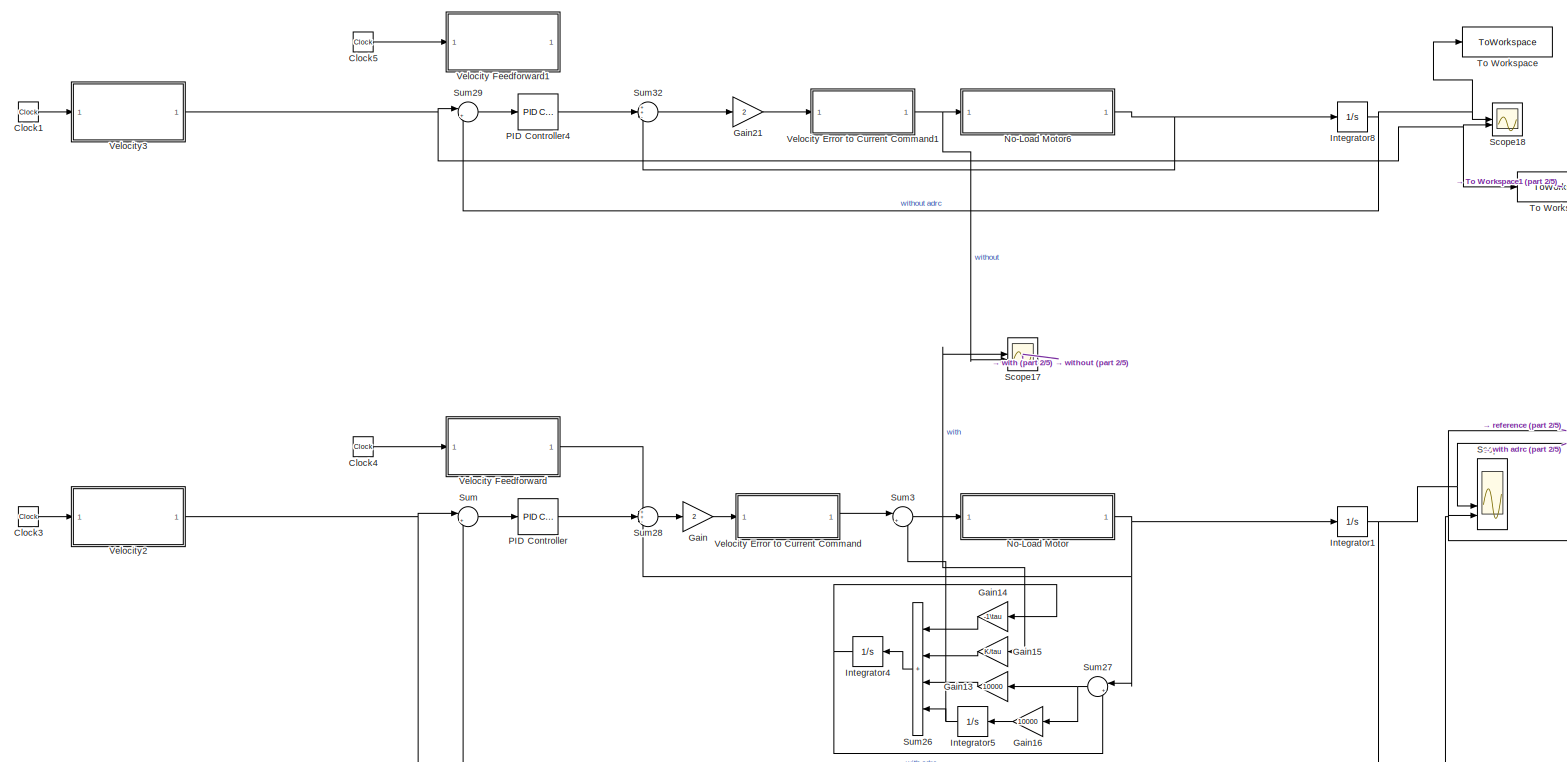
[diagram: root canvas - part 1/5, top left region]
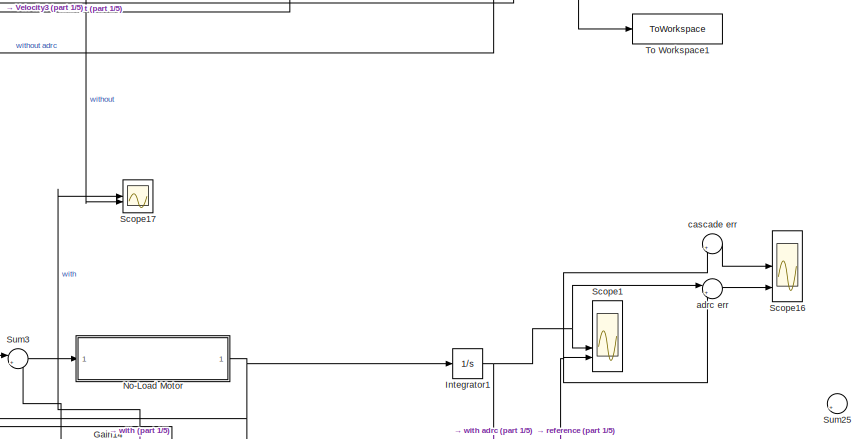
[diagram: root canvas - part 2/5, top center region]
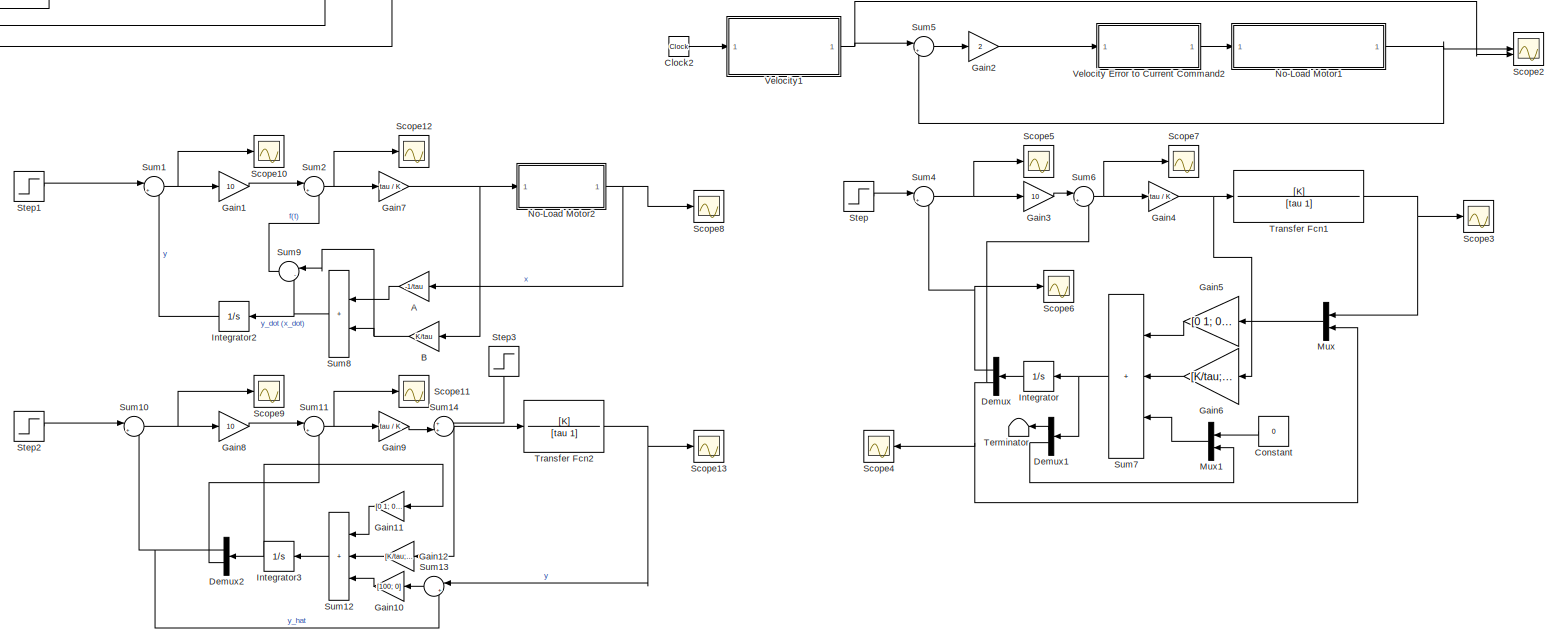
[diagram: root canvas - part 3/5, middle right region]
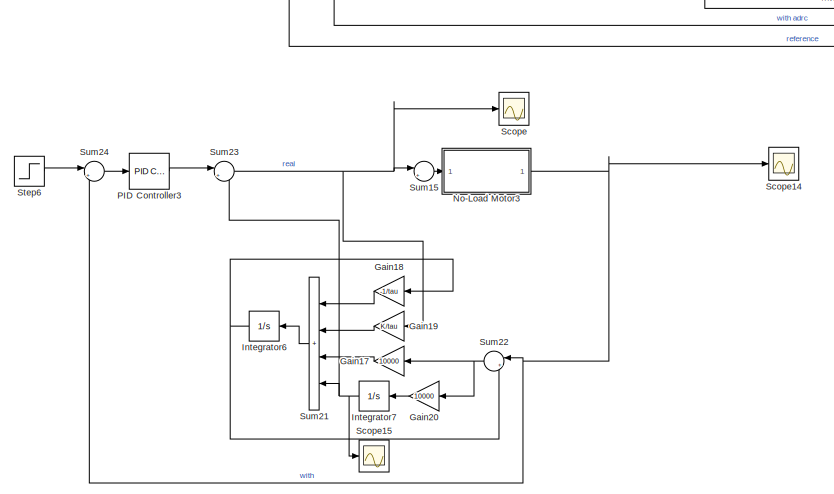
[diagram: root canvas - part 4/5, middle left region]
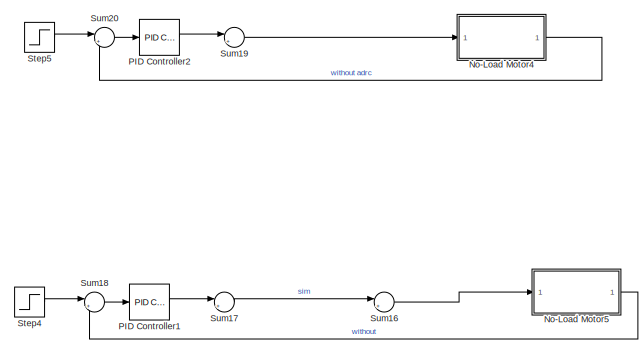
[diagram: root canvas - part 5/5, bottom right region]
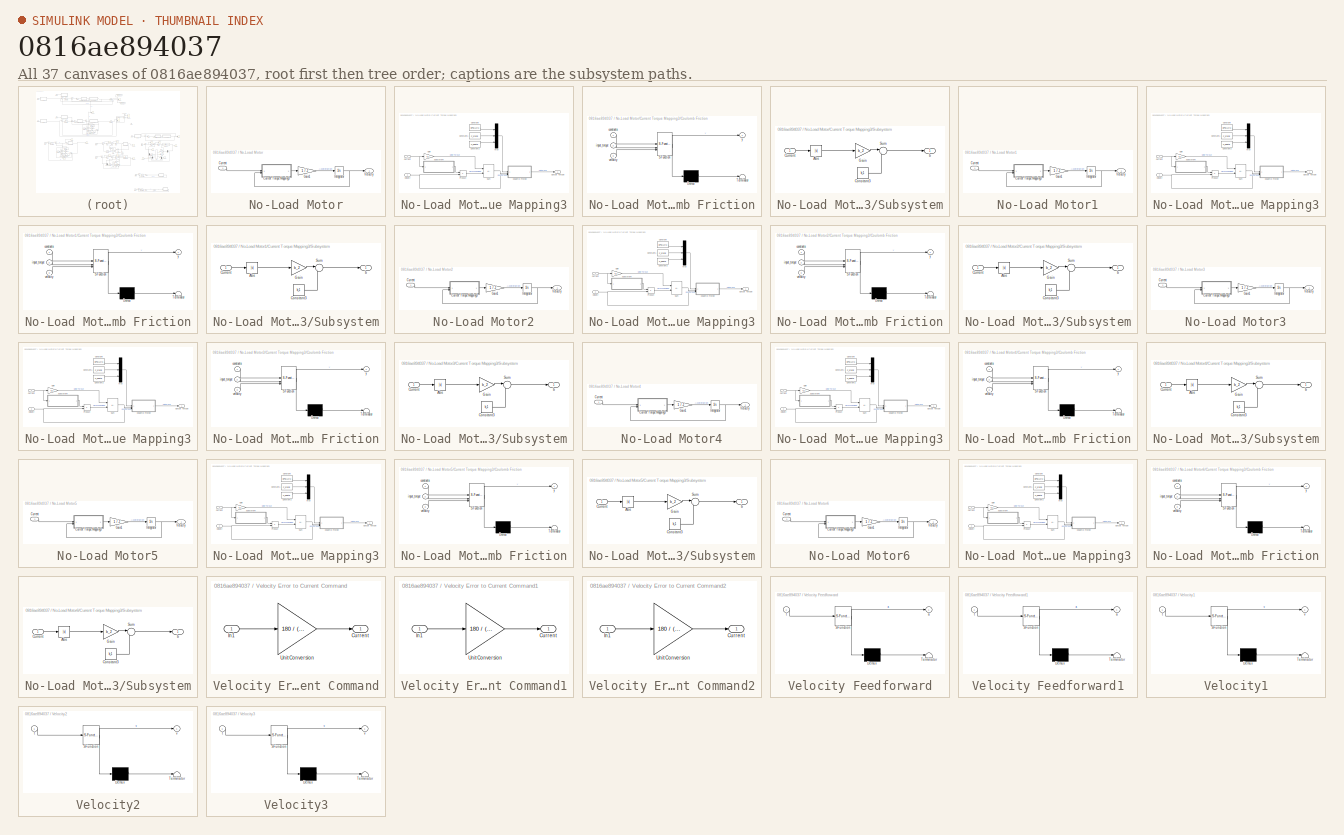
[diagram: thumbnail index - all 37 canvases of the model, root first then tree order]
MODEL slx_0816ae894037
KIND model
CONFIG AbsTol = auto
CONFIG EnableMultiTasking = off
CONFIG FixedStep = 0.03
CONFIG MaxStep = auto
CONFIG MinStep = auto
CONFIG RelTol = 1e-3
CONFIG SampleTimeConstraint = Unconstrained
CONFIG SolverName = VariableStepAuto
CONFIG StartTime = 0.0
CONFIG StopTime = 1
BLOCK [Gain] A
  Commented = on
  Gain = -1/tau
  NameLocation = top
BLOCK [Gain] B
  Commented = on
  Gain = K/tau
  NameLocation = top
BLOCK [Clock] Clock1
BLOCK [Clock] Clock2
  Commented = on
BLOCK [Clock] Clock3
BLOCK [Clock] Clock4
BLOCK [Clock] Clock5
BLOCK [Constant] Constant
  Commented = on
  NameLocation = top
  Value = 0
BLOCK [Demux] Demux
  Commented = on
  NameLocation = top
  Outputs = 2
BLOCK [Demux] Demux1
  Commented = on
  NameLocation = top
  Outputs = 2
BLOCK [Demux] Demux2
  Commented = on
  NameLocation = top
  Outputs = 2
BLOCK [Gain] Gain
  Gain = 2
BLOCK [Gain] Gain1
  Commented = on
  Gain = 10
BLOCK [Gain] Gain10
  Commented = on
  Gain = [100; 0]
  Multiplication = Matrix(K*u)
  NameLocation = top
BLOCK [Gain] Gain11
  Commented = on
  Gain = [0 1; 0 0]
  Multiplication = Matrix(K*u)
  NameLocation = top
BLOCK [Gain] Gain12
  Commented = on
  Gain = [K/tau; 0]
  Multiplication = Matrix(K*u)
  NameLocation = top
BLOCK [Gain] Gain13
  Gain = 10000
  NameLocation = top
BLOCK [Gain] Gain14
  Gain = -1\tau
  NameLocation = top
BLOCK [Gain] Gain15
  Gain = K/tau
  NameLocation = top
BLOCK [Gain] Gain16
  Gain = 10000
  NameLocation = top
BLOCK [Gain] Gain17
  Gain = 10000
  NameLocation = top
BLOCK [Gain] Gain18
  Gain = -1/tau
  NameLocation = top
BLOCK [Gain] Gain19
  Gain = K/tau
  NameLocation = top
BLOCK [Gain] Gain2
  Commented = on
  Gain = 2
BLOCK [Gain] Gain20
  Gain = 10000
  NameLocation = top
BLOCK [Gain] Gain21
  Gain = 2
BLOCK [Gain] Gain3
  Commented = on
  Gain = 10
BLOCK [Gain] Gain4
  Commented = on
  Gain = tau / K
BLOCK [Gain] Gain5
  Commented = on
  Gain = [0 1; 0 0]
  Multiplication = Matrix(K*u)
  NameLocation = top
BLOCK [Gain] Gain6
  Commented = on
  Gain = [K/tau; 0]
  Multiplication = Matrix(K*u)
  NameLocation = top
BLOCK [Gain] Gain7
  Commented = on
  Gain = tau / K
BLOCK [Gain] Gain8
  Commented = on
  Gain = 10
BLOCK [Gain] Gain9
  Commented = on
  Gain = tau / K
BLOCK [Integrator] Integrator
  Commented = on
  NameLocation = top
BLOCK [Integrator] Integrator1
BLOCK [Integrator] Integrator2
  Commented = on
  NameLocation = top
BLOCK [Integrator] Integrator3
  Commented = on
  NameLocation = top
BLOCK [Integrator] Integrator4
  NameLocation = top
BLOCK [Integrator] Integrator5
  NameLocation = top
BLOCK [Integrator] Integrator6
  NameLocation = top
BLOCK [Integrator] Integrator7
  NameLocation = top
BLOCK [Integrator] Integrator8
BLOCK [Mux] Mux
  Commented = on
  DisplayOption = bar
  Inputs = 2
  NameLocation = top
BLOCK [Mux] Mux1
  Commented = on
  DisplayOption = bar
  Inputs = 2
  NameLocation = top
BLOCK [SubSystem] No-Load Motor
BLOCK [Inport] No-Load Motor/Current
BLOCK [SubSystem] No-Load Motor/Current Torque Mapping3
BLOCK [Constant] No-Load Motor/Current Torque Mapping3/Constant
  Value = EPSILON
BLOCK [Constant] No-Load Motor/Current Torque Mapping3/Constant1
  Value = F_static
BLOCK [Constant] No-Load Motor/Current Torque Mapping3/Constant2
  Value = F_kinetic
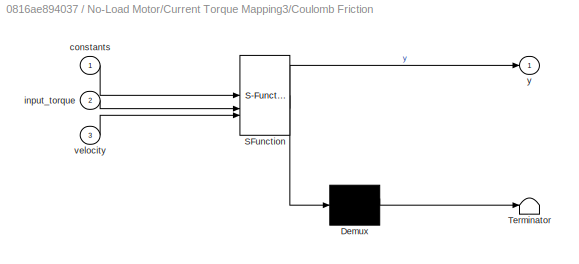
BLOCK [SubSystem] No-Load Motor/Current Torque Mapping3/Coulomb Friction
  ErrorFcn = Stateflow.Translate.translate
  LibrarySourceBlock = simulink/User-Defined\nFunctions/MATLAB Function
  PermitHierarchicalResolution = ExplicitOnly
  SFBlockType = MATLAB Function
  TreatAsAtomicUnit = on
BLOCK [Demux] No-Load Motor/Current Torque Mapping3/Coulomb Friction/ Demux 
  Outputs = 1
BLOCK [S-Function] No-Load Motor/Current Torque Mapping3/Coulomb Friction/ SFunction 
  EnableBusSupport = on
  FunctionName = sf_sfun
  PortCounts = [3 2]
  SFcnIsStateOwnerBlock = off
  SFunctionDeploymentMode = off
  Tag = Stateflow S-Function 2
BLOCK [Terminator] No-Load Motor/Current Torque Mapping3/Coulomb Friction/ Terminator 
BLOCK [Inport] No-Load Motor/Current Torque Mapping3/Coulomb Friction/constants
BLOCK [Inport] No-Load Motor/Current Torque Mapping3/Coulomb Friction/input_torque
  Port = 2
BLOCK [Inport] No-Load Motor/Current Torque Mapping3/Coulomb Friction/velocity
  Port = 3
BLOCK [Outport] No-Load Motor/Current Torque Mapping3/Coulomb Friction/y
BLOCK [Inport] No-Load Motor/Current Torque Mapping3/Current
BLOCK [Gain] No-Load Motor/Current Torque Mapping3/Gain
  Gain = K_t
BLOCK [Mux] No-Load Motor/Current Torque Mapping3/Mux
  DisplayOption = bar
  Inputs = 3
BLOCK [Outport] No-Load Motor/Current Torque Mapping3/Output Torque
BLOCK [Product] No-Load Motor/Current Torque Mapping3/Product
BLOCK [SubSystem] No-Load Motor/Current Torque Mapping3/Subsystem
BLOCK [Abs] No-Load Motor/Current Torque Mapping3/Subsystem/Abs
  SaturateOnIntegerOverflow = off
BLOCK [Constant] No-Load Motor/Current Torque Mapping3/Subsystem/Constant3
  Value = b_1
BLOCK [Inport] No-Load Motor/Current Torque Mapping3/Subsystem/Current
BLOCK [Gain] No-Load Motor/Current Torque Mapping3/Subsystem/Gain
  Gain = b_2
BLOCK [Sum] No-Load Motor/Current Torque Mapping3/Subsystem/Sum
  Inputs = |++
BLOCK [Outport] No-Load Motor/Current Torque Mapping3/Subsystem/b
BLOCK [Sum] No-Load Motor/Current Torque Mapping3/Sum
  IconShape = rectangular
  Inputs = +-
BLOCK [Inport] No-Load Motor/Current Torque Mapping3/Velocity
  Port = 2
BLOCK [Gain] No-Load Motor/Gain1
  Gain = 1 / J
BLOCK [Integrator] No-Load Motor/Integrator
BLOCK [Outport] No-Load Motor/Velocity
BLOCK [SubSystem] No-Load Motor1
  Commented = on
BLOCK [Inport] No-Load Motor1/Current
BLOCK [SubSystem] No-Load Motor1/Current Torque Mapping3
BLOCK [Constant] No-Load Motor1/Current Torque Mapping3/Constant
  Value = EPSILON
BLOCK [Constant] No-Load Motor1/Current Torque Mapping3/Constant1
  Value = F_static
BLOCK [Constant] No-Load Motor1/Current Torque Mapping3/Constant2
  Value = F_kinetic
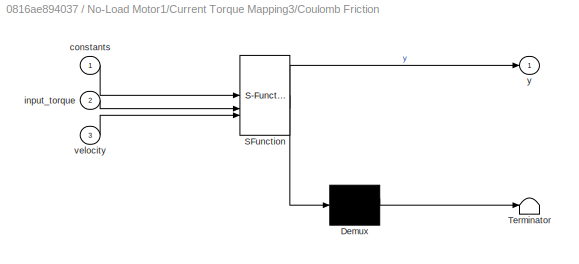
BLOCK [SubSystem] No-Load Motor1/Current Torque Mapping3/Coulomb Friction
  ErrorFcn = Stateflow.Translate.translate
  LibrarySourceBlock = simulink/User-Defined\nFunctions/MATLAB Function
  PermitHierarchicalResolution = ExplicitOnly
  SFBlockType = MATLAB Function
  TreatAsAtomicUnit = on
BLOCK [Demux] No-Load Motor1/Current Torque Mapping3/Coulomb Friction/ Demux 
  Outputs = 1
BLOCK [S-Function] No-Load Motor1/Current Torque Mapping3/Coulomb Friction/ SFunction 
  EnableBusSupport = on
  FunctionName = sf_sfun
  PortCounts = [3 2]
  SFcnIsStateOwnerBlock = off
  SFunctionDeploymentMode = off
  Tag = Stateflow S-Function 1
BLOCK [Terminator] No-Load Motor1/Current Torque Mapping3/Coulomb Friction/ Terminator 
BLOCK [Inport] No-Load Motor1/Current Torque Mapping3/Coulomb Friction/constants
BLOCK [Inport] No-Load Motor1/Current Torque Mapping3/Coulomb Friction/input_torque
  Port = 2
BLOCK [Inport] No-Load Motor1/Current Torque Mapping3/Coulomb Friction/velocity
  Port = 3
BLOCK [Outport] No-Load Motor1/Current Torque Mapping3/Coulomb Friction/y
BLOCK [Inport] No-Load Motor1/Current Torque Mapping3/Current
BLOCK [Gain] No-Load Motor1/Current Torque Mapping3/Gain
  Gain = K_t
BLOCK [Mux] No-Load Motor1/Current Torque Mapping3/Mux
  DisplayOption = bar
  Inputs = 3
BLOCK [Outport] No-Load Motor1/Current Torque Mapping3/Output Torque
BLOCK [Product] No-Load Motor1/Current Torque Mapping3/Product
BLOCK [SubSystem] No-Load Motor1/Current Torque Mapping3/Subsystem
BLOCK [Abs] No-Load Motor1/Current Torque Mapping3/Subsystem/Abs
  SaturateOnIntegerOverflow = off
BLOCK [Constant] No-Load Motor1/Current Torque Mapping3/Subsystem/Constant3
  Value = b_1
BLOCK [Inport] No-Load Motor1/Current Torque Mapping3/Subsystem/Current
BLOCK [Gain] No-Load Motor1/Current Torque Mapping3/Subsystem/Gain
  Gain = b_2
BLOCK [Sum] No-Load Motor1/Current Torque Mapping3/Subsystem/Sum
  Inputs = |++
BLOCK [Outport] No-Load Motor1/Current Torque Mapping3/Subsystem/b
BLOCK [Sum] No-Load Motor1/Current Torque Mapping3/Sum
  IconShape = rectangular
  Inputs = +-
BLOCK [Inport] No-Load Motor1/Current Torque Mapping3/Velocity
  Port = 2
BLOCK [Gain] No-Load Motor1/Gain1
  Gain = 1 / J
BLOCK [Integrator] No-Load Motor1/Integrator
BLOCK [Outport] No-Load Motor1/Velocity
BLOCK [SubSystem] No-Load Motor2
  Commented = on
BLOCK [Inport] No-Load Motor2/Current
BLOCK [SubSystem] No-Load Motor2/Current Torque Mapping3
BLOCK [Constant] No-Load Motor2/Current Torque Mapping3/Constant
  Value = EPSILON
BLOCK [Constant] No-Load Motor2/Current Torque Mapping3/Constant1
  Value = F_static
BLOCK [Constant] No-Load Motor2/Current Torque Mapping3/Constant2
  Value = F_kinetic
BLOCK [SubSystem] No-Load Motor2/Current Torque Mapping3/Coulomb Friction
  ErrorFcn = Stateflow.Translate.translate
  LibrarySourceBlock = simulink/User-Defined\nFunctions/MATLAB Function
  PermitHierarchicalResolution = ExplicitOnly
  SFBlockType = MATLAB Function
  TreatAsAtomicUnit = on
BLOCK [Demux] No-Load Motor2/Current Torque Mapping3/Coulomb Friction/ Demux 
  Outputs = 1
BLOCK [S-Function] No-Load Motor2/Current Torque Mapping3/Coulomb Friction/ SFunction 
  EnableBusSupport = on
  FunctionName = sf_sfun
  PortCounts = [3 2]
  SFcnIsStateOwnerBlock = off
  SFunctionDeploymentMode = off
  Tag = Stateflow S-Function 3
BLOCK [Terminator] No-Load Motor2/Current Torque Mapping3/Coulomb Friction/ Terminator 
BLOCK [Inport] No-Load Motor2/Current Torque Mapping3/Coulomb Friction/constants
BLOCK [Inport] No-Load Motor2/Current Torque Mapping3/Coulomb Friction/input_torque
  Port = 2
BLOCK [Inport] No-Load Motor2/Current Torque Mapping3/Coulomb Friction/velocity
  Port = 3
BLOCK [Outport] No-Load Motor2/Current Torque Mapping3/Coulomb Friction/y
BLOCK [Inport] No-Load Motor2/Current Torque Mapping3/Current
BLOCK [Gain] No-Load Motor2/Current Torque Mapping3/Gain
  Gain = K_t
BLOCK [Mux] No-Load Motor2/Current Torque Mapping3/Mux
  DisplayOption = bar
  Inputs = 3
BLOCK [Outport] No-Load Motor2/Current Torque Mapping3/Output Torque
BLOCK [Product] No-Load Motor2/Current Torque Mapping3/Product
BLOCK [SubSystem] No-Load Motor2/Current Torque Mapping3/Subsystem
BLOCK [Abs] No-Load Motor2/Current Torque Mapping3/Subsystem/Abs
  SaturateOnIntegerOverflow = off
BLOCK [Constant] No-Load Motor2/Current Torque Mapping3/Subsystem/Constant3
  Value = b_1
BLOCK [Inport] No-Load Motor2/Current Torque Mapping3/Subsystem/Current
BLOCK [Gain] No-Load Motor2/Current Torque Mapping3/Subsystem/Gain
  Gain = b_2
BLOCK [Sum] No-Load Motor2/Current Torque Mapping3/Subsystem/Sum
  Inputs = |++
BLOCK [Outport] No-Load Motor2/Current Torque Mapping3/Subsystem/b
BLOCK [Sum] No-Load Motor2/Current Torque Mapping3/Sum
  IconShape = rectangular
  Inputs = +-
BLOCK [Inport] No-Load Motor2/Current Torque Mapping3/Velocity
  Port = 2
BLOCK [Gain] No-Load Motor2/Gain1
  Gain = 1 / J
BLOCK [Integrator] No-Load Motor2/Integrator
BLOCK [Outport] No-Load Motor2/Velocity
BLOCK [SubSystem] No-Load Motor3
BLOCK [Inport] No-Load Motor3/Current
BLOCK [SubSystem] No-Load Motor3/Current Torque Mapping3
BLOCK [Constant] No-Load Motor3/Current Torque Mapping3/Constant
  Value = EPSILON
BLOCK [Constant] No-Load Motor3/Current Torque Mapping3/Constant1
  Value = F_static
BLOCK [Constant] No-Load Motor3/Current Torque Mapping3/Constant2
  Value = F_kinetic
BLOCK [SubSystem] No-Load Motor3/Current Torque Mapping3/Coulomb Friction
  ErrorFcn = Stateflow.Translate.translate
  LibrarySourceBlock = simulink/User-Defined\nFunctions/MATLAB Function
  PermitHierarchicalResolution = ExplicitOnly
  SFBlockType = MATLAB Function
  TreatAsAtomicUnit = on
BLOCK [Demux] No-Load Motor3/Current Torque Mapping3/Coulomb Friction/ Demux 
  Outputs = 1
BLOCK [S-Function] No-Load Motor3/Current Torque Mapping3/Coulomb Friction/ SFunction 
  EnableBusSupport = on
  FunctionName = sf_sfun
  PortCounts = [3 2]
  SFcnIsStateOwnerBlock = off
  SFunctionDeploymentMode = off
  Tag = Stateflow S-Function 4
BLOCK [Terminator] No-Load Motor3/Current Torque Mapping3/Coulomb Friction/ Terminator 
BLOCK [Inport] No-Load Motor3/Current Torque Mapping3/Coulomb Friction/constants
BLOCK [Inport] No-Load Motor3/Current Torque Mapping3/Coulomb Friction/input_torque
  Port = 2
BLOCK [Inport] No-Load Motor3/Current Torque Mapping3/Coulomb Friction/velocity
  Port = 3
BLOCK [Outport] No-Load Motor3/Current Torque Mapping3/Coulomb Friction/y
BLOCK [Inport] No-Load Motor3/Current Torque Mapping3/Current
BLOCK [Gain] No-Load Motor3/Current Torque Mapping3/Gain
  Gain = K_t
BLOCK [Mux] No-Load Motor3/Current Torque Mapping3/Mux
  DisplayOption = bar
  Inputs = 3
BLOCK [Outport] No-Load Motor3/Current Torque Mapping3/Output Torque
BLOCK [Product] No-Load Motor3/Current Torque Mapping3/Product
BLOCK [SubSystem] No-Load Motor3/Current Torque Mapping3/Subsystem
BLOCK [Abs] No-Load Motor3/Current Torque Mapping3/Subsystem/Abs
  SaturateOnIntegerOverflow = off
BLOCK [Constant] No-Load Motor3/Current Torque Mapping3/Subsystem/Constant3
  Value = b_1
BLOCK [Inport] No-Load Motor3/Current Torque Mapping3/Subsystem/Current
BLOCK [Gain] No-Load Motor3/Current Torque Mapping3/Subsystem/Gain
  Gain = b_2
BLOCK [Sum] No-Load Motor3/Current Torque Mapping3/Subsystem/Sum
  Inputs = |++
BLOCK [Outport] No-Load Motor3/Current Torque Mapping3/Subsystem/b
BLOCK [Sum] No-Load Motor3/Current Torque Mapping3/Sum
  IconShape = rectangular
  Inputs = +-
BLOCK [Inport] No-Load Motor3/Current Torque Mapping3/Velocity
  Port = 2
BLOCK [Gain] No-Load Motor3/Gain1
  Gain = 1 / J
BLOCK [Integrator] No-Load Motor3/Integrator
BLOCK [Outport] No-Load Motor3/Velocity
BLOCK [SubSystem] No-Load Motor4
  Commented = on
BLOCK [Inport] No-Load Motor4/Current
BLOCK [SubSystem] No-Load Motor4/Current Torque Mapping3
BLOCK [Constant] No-Load Motor4/Current Torque Mapping3/Constant
  Value = EPSILON
BLOCK [Constant] No-Load Motor4/Current Torque Mapping3/Constant1
  Value = F_static
BLOCK [Constant] No-Load Motor4/Current Torque Mapping3/Constant2
  Value = F_kinetic
BLOCK [SubSystem] No-Load Motor4/Current Torque Mapping3/Coulomb Friction
  ErrorFcn = Stateflow.Translate.translate
  LibrarySourceBlock = simulink/User-Defined\nFunctions/MATLAB Function
  PermitHierarchicalResolution = ExplicitOnly
  SFBlockType = MATLAB Function
  TreatAsAtomicUnit = on
BLOCK [Demux] No-Load Motor4/Current Torque Mapping3/Coulomb Friction/ Demux 
  Outputs = 1
BLOCK [S-Function] No-Load Motor4/Current Torque Mapping3/Coulomb Friction/ SFunction 
  EnableBusSupport = on
  FunctionName = sf_sfun
  PortCounts = [3 2]
  SFcnIsStateOwnerBlock = off
  SFunctionDeploymentMode = off
  Tag = Stateflow S-Function 8
BLOCK [Terminator] No-Load Motor4/Current Torque Mapping3/Coulomb Friction/ Terminator 
BLOCK [Inport] No-Load Motor4/Current Torque Mapping3/Coulomb Friction/constants
BLOCK [Inport] No-Load Motor4/Current Torque Mapping3/Coulomb Friction/input_torque
  Port = 2
BLOCK [Inport] No-Load Motor4/Current Torque Mapping3/Coulomb Friction/velocity
  Port = 3
BLOCK [Outport] No-Load Motor4/Current Torque Mapping3/Coulomb Friction/y
BLOCK [Inport] No-Load Motor4/Current Torque Mapping3/Current
BLOCK [Gain] No-Load Motor4/Current Torque Mapping3/Gain
  Gain = K_t
BLOCK [Mux] No-Load Motor4/Current Torque Mapping3/Mux
  DisplayOption = bar
  Inputs = 3
BLOCK [Outport] No-Load Motor4/Current Torque Mapping3/Output Torque
BLOCK [Product] No-Load Motor4/Current Torque Mapping3/Product
BLOCK [SubSystem] No-Load Motor4/Current Torque Mapping3/Subsystem
BLOCK [Abs] No-Load Motor4/Current Torque Mapping3/Subsystem/Abs
  SaturateOnIntegerOverflow = off
BLOCK [Constant] No-Load Motor4/Current Torque Mapping3/Subsystem/Constant3
  Value = b_1
BLOCK [Inport] No-Load Motor4/Current Torque Mapping3/Subsystem/Current
BLOCK [Gain] No-Load Motor4/Current Torque Mapping3/Subsystem/Gain
  Gain = b_2
BLOCK [Sum] No-Load Motor4/Current Torque Mapping3/Subsystem/Sum
  Inputs = |++
BLOCK [Outport] No-Load Motor4/Current Torque Mapping3/Subsystem/b
BLOCK [Sum] No-Load Motor4/Current Torque Mapping3/Sum
  IconShape = rectangular
  Inputs = +-
BLOCK [Inport] No-Load Motor4/Current Torque Mapping3/Velocity
  Port = 2
BLOCK [Gain] No-Load Motor4/Gain1
  Gain = 1 / J
BLOCK [Integrator] No-Load Motor4/Integrator
BLOCK [Outport] No-Load Motor4/Velocity
BLOCK [SubSystem] No-Load Motor5
  Commented = on
BLOCK [Inport] No-Load Motor5/Current
BLOCK [SubSystem] No-Load Motor5/Current Torque Mapping3
BLOCK [Constant] No-Load Motor5/Current Torque Mapping3/Constant
  Value = EPSILON
BLOCK [Constant] No-Load Motor5/Current Torque Mapping3/Constant1
  Value = F_static
BLOCK [Constant] No-Load Motor5/Current Torque Mapping3/Constant2
  Value = F_kinetic
BLOCK [SubSystem] No-Load Motor5/Current Torque Mapping3/Coulomb Friction
  ErrorFcn = Stateflow.Translate.translate
  LibrarySourceBlock = simulink/User-Defined\nFunctions/MATLAB Function
  PermitHierarchicalResolution = ExplicitOnly
  SFBlockType = MATLAB Function
  TreatAsAtomicUnit = on
BLOCK [Demux] No-Load Motor5/Current Torque Mapping3/Coulomb Friction/ Demux 
  Outputs = 1
BLOCK [S-Function] No-Load Motor5/Current Torque Mapping3/Coulomb Friction/ SFunction 
  EnableBusSupport = on
  FunctionName = sf_sfun
  PortCounts = [3 2]
  SFcnIsStateOwnerBlock = off
  SFunctionDeploymentMode = off
  Tag = Stateflow S-Function 9
BLOCK [Terminator] No-Load Motor5/Current Torque Mapping3/Coulomb Friction/ Terminator 
BLOCK [Inport] No-Load Motor5/Current Torque Mapping3/Coulomb Friction/constants
BLOCK [Inport] No-Load Motor5/Current Torque Mapping3/Coulomb Friction/input_torque
  Port = 2
BLOCK [Inport] No-Load Motor5/Current Torque Mapping3/Coulomb Friction/velocity
  Port = 3
BLOCK [Outport] No-Load Motor5/Current Torque Mapping3/Coulomb Friction/y
BLOCK [Inport] No-Load Motor5/Current Torque Mapping3/Current
BLOCK [Gain] No-Load Motor5/Current Torque Mapping3/Gain
  Gain = K_t
BLOCK [Mux] No-Load Motor5/Current Torque Mapping3/Mux
  DisplayOption = bar
  Inputs = 3
BLOCK [Outport] No-Load Motor5/Current Torque Mapping3/Output Torque
BLOCK [Product] No-Load Motor5/Current Torque Mapping3/Product
BLOCK [SubSystem] No-Load Motor5/Current Torque Mapping3/Subsystem
BLOCK [Abs] No-Load Motor5/Current Torque Mapping3/Subsystem/Abs
  SaturateOnIntegerOverflow = off
BLOCK [Constant] No-Load Motor5/Current Torque Mapping3/Subsystem/Constant3
  Value = b_1
BLOCK [Inport] No-Load Motor5/Current Torque Mapping3/Subsystem/Current
BLOCK [Gain] No-Load Motor5/Current Torque Mapping3/Subsystem/Gain
  Gain = b_2
BLOCK [Sum] No-Load Motor5/Current Torque Mapping3/Subsystem/Sum
  Inputs = |++
BLOCK [Outport] No-Load Motor5/Current Torque Mapping3/Subsystem/b
BLOCK [Sum] No-Load Motor5/Current Torque Mapping3/Sum
  IconShape = rectangular
  Inputs = +-
BLOCK [Inport] No-Load Motor5/Current Torque Mapping3/Velocity
  Port = 2
BLOCK [Gain] No-Load Motor5/Gain1
  Gain = 1 / J
BLOCK [Integrator] No-Load Motor5/Integrator
BLOCK [Outport] No-Load Motor5/Velocity
BLOCK [SubSystem] No-Load Motor6
BLOCK [Inport] No-Load Motor6/Current
BLOCK [SubSystem] No-Load Motor6/Current Torque Mapping3
BLOCK [Constant] No-Load Motor6/Current Torque Mapping3/Constant
  Value = EPSILON
BLOCK [Constant] No-Load Motor6/Current Torque Mapping3/Constant1
  Value = F_static
BLOCK [Constant] No-Load Motor6/Current Torque Mapping3/Constant2
  Value = F_kinetic
BLOCK [SubSystem] No-Load Motor6/Current Torque Mapping3/Coulomb Friction
  ErrorFcn = Stateflow.Translate.translate
  LibrarySourceBlock = simulink/User-Defined\nFunctions/MATLAB Function
  PermitHierarchicalResolution = ExplicitOnly
  SFBlockType = MATLAB Function
  TreatAsAtomicUnit = on
BLOCK [Demux] No-Load Motor6/Current Torque Mapping3/Coulomb Friction/ Demux 
  Outputs = 1
BLOCK [S-Function] No-Load Motor6/Current Torque Mapping3/Coulomb Friction/ SFunction 
  EnableBusSupport = on
  FunctionName = sf_sfun
  PortCounts = [3 2]
  SFcnIsStateOwnerBlock = off
  SFunctionDeploymentMode = off
  Tag = Stateflow S-Function 10
BLOCK [Terminator] No-Load Motor6/Current Torque Mapping3/Coulomb Friction/ Terminator 
BLOCK [Inport] No-Load Motor6/Current Torque Mapping3/Coulomb Friction/constants
BLOCK [Inport] No-Load Motor6/Current Torque Mapping3/Coulomb Friction/input_torque
  Port = 2
BLOCK [Inport] No-Load Motor6/Current Torque Mapping3/Coulomb Friction/velocity
  Port = 3
BLOCK [Outport] No-Load Motor6/Current Torque Mapping3/Coulomb Friction/y
BLOCK [Inport] No-Load Motor6/Current Torque Mapping3/Current
BLOCK [Gain] No-Load Motor6/Current Torque Mapping3/Gain
  Gain = K_t
BLOCK [Mux] No-Load Motor6/Current Torque Mapping3/Mux
  DisplayOption = bar
  Inputs = 3
BLOCK [Outport] No-Load Motor6/Current Torque Mapping3/Output Torque
BLOCK [Product] No-Load Motor6/Current Torque Mapping3/Product
BLOCK [SubSystem] No-Load Motor6/Current Torque Mapping3/Subsystem
BLOCK [Abs] No-Load Motor6/Current Torque Mapping3/Subsystem/Abs
  SaturateOnIntegerOverflow = off
BLOCK [Constant] No-Load Motor6/Current Torque Mapping3/Subsystem/Constant3
  Value = b_1
BLOCK [Inport] No-Load Motor6/Current Torque Mapping3/Subsystem/Current
BLOCK [Gain] No-Load Motor6/Current Torque Mapping3/Subsystem/Gain
  Gain = b_2
BLOCK [Sum] No-Load Motor6/Current Torque Mapping3/Subsystem/Sum
  Inputs = |++
BLOCK [Outport] No-Load Motor6/Current Torque Mapping3/Subsystem/b
BLOCK [Sum] No-Load Motor6/Current Torque Mapping3/Sum
  IconShape = rectangular
  Inputs = +-
BLOCK [Inport] No-Load Motor6/Current Torque Mapping3/Velocity
  Port = 2
BLOCK [Gain] No-Load Motor6/Gain1
  Gain = 1 / J
BLOCK [Integrator] No-Load Motor6/Integrator
BLOCK [Outport] No-Load Motor6/Velocity
BLOCK [Reference] PID Controller  REF=slpidlib/PID Controller
  LibrarySourceBlock = simulink/Continuous/PID Controller
  SourceBlock = slpidlib/PID Controller
  SourceType = PID 1dof
BLOCK [Reference] PID Controller1  REF=slpidlib/PID Controller
  Commented = on
  LibrarySourceBlock = simulink/Continuous/PID Controller
  SourceBlock = slpidlib/PID Controller
  SourceType = PID 1dof
BLOCK [Reference] PID Controller2  REF=slpidlib/PID Controller
  Commented = on
  LibrarySourceBlock = simulink/Continuous/PID Controller
  SourceBlock = slpidlib/PID Controller
  SourceType = PID 1dof
BLOCK [Reference] PID Controller3  REF=slpidlib/PID Controller
  LibrarySourceBlock = simulink/Continuous/PID Controller
  SourceBlock = slpidlib/PID Controller
  SourceType = PID 1dof
BLOCK [Reference] PID Controller4  REF=slpidlib/PID Controller
  LibrarySourceBlock = simulink/Continuous/PID Controller
  SourceBlock = slpidlib/PID Controller
  SourceType = PID 1dof
BLOCK [Scope] Scope
  Floating = off
  NumInputPorts = 2
  ScopeSpecificationString = Simulink.scopes.TimeScopeBlockCfg('CurrentConfiguration', extmgr.ConfigurationSet(extmgr.Configuration('Core','General UI',true),extmgr.Configuration('Core','Source UI',true),extmgr.Configuration('Sources','WiredSimulink',true,'DataLoggingVariableName','ScopeData1'),extmgr.Configuration('Visuals','Time Domain',true,'SerializedDisplays',{struct('MinYLimReal','-0.625','MaxYLimReal','5.625','YLabelRe...<+1684ch>
BLOCK [Scope] Scope1
  Floating = off
  NumInputPorts = 4
  ScopeSpecificationString = Simulink.scopes.TimeScopeBlockCfg('CurrentConfiguration', extmgr.ConfigurationSet(extmgr.Configuration('Core','General UI',true),extmgr.Configuration('Core','Source UI',true),extmgr.Configuration('Sources','WiredSimulink',true),extmgr.Configuration('Visuals','Time Domain',true,'SerializedDisplays',{struct('MinYLimReal','-0.19795','MaxYLimReal','1.78156','YLabelReal','','MinYLimMag','0.00000','MaxY...<+1745ch>
BLOCK [Scope] Scope10
  Commented = on
  Floating = off
  NumInputPorts = 1
  ScopeSpecificationString = Simulink.scopes.TimeScopeBlockCfg('CurrentConfiguration', extmgr.ConfigurationSet(extmgr.Configuration('Core','General UI',true),extmgr.Configuration('Core','Source UI',true),extmgr.Configuration('Sources','WiredSimulink',true,'DataLoggingVariableName','ScopeData1'),extmgr.Configuration('Visuals','Time Domain',true,'SerializedDisplays',{struct('MinYLimReal','-0.125','MaxYLimReal','1.125','YLabelRe...<+1351ch>
BLOCK [Scope] Scope11
  Commented = on
  Floating = off
  NumInputPorts = 1
  ScopeSpecificationString = Simulink.scopes.TimeScopeBlockCfg('CurrentConfiguration', extmgr.ConfigurationSet(extmgr.Configuration('Core','General UI',true),extmgr.Configuration('Core','Source UI',true),extmgr.Configuration('Sources','WiredSimulink',true,'DataLoggingVariableName','ScopeData8'),extmgr.Configuration('Visuals','Time Domain',true,'SerializedDisplays',{struct('MinYLimReal','-1.25','MaxYLimReal','11.25','YLabelRea...<+1350ch>
BLOCK [Scope] Scope12
  Commented = on
  Floating = off
  NumInputPorts = 1
  ScopeSpecificationString = Simulink.scopes.TimeScopeBlockCfg('CurrentConfiguration', extmgr.ConfigurationSet(extmgr.Configuration('Core','General UI',true),extmgr.Configuration('Core','Source UI',true),extmgr.Configuration('Sources','WiredSimulink',true,'DataLoggingVariableName','ScopeData9'),extmgr.Configuration('Visuals','Time Domain',true,'SerializedDisplays',{struct('MinYLimReal','-1.25','MaxYLimReal','11.25','YLabelRea...<+1349ch>
BLOCK [Scope] Scope13
  Commented = on
  Floating = off
  NumInputPorts = 1
  ScopeSpecificationString = Simulink.scopes.TimeScopeBlockCfg('CurrentConfiguration', extmgr.ConfigurationSet(extmgr.Configuration('Core','General UI',true),extmgr.Configuration('Core','Source UI',true),extmgr.Configuration('Sources','WiredSimulink',true,'DataLoggingVariableName','ScopeData11'),extmgr.Configuration('Visuals','Time Domain',true,'SerializedDisplays',{struct('MinYLimReal','-0.10778','MaxYLimReal','0.97001','YLa...<+1361ch>
BLOCK [Scope] Scope14
  Floating = off
  NumInputPorts = 2
  ScopeSpecificationString = Simulink.scopes.TimeScopeBlockCfg('CurrentConfiguration', extmgr.ConfigurationSet(extmgr.Configuration('Core','General UI',true),extmgr.Configuration('Core','Source UI',true),extmgr.Configuration('Sources','WiredSimulink',true,'DataLoggingVariableName','ScopeData2'),extmgr.Configuration('Visuals','Time Domain',true,'SerializedDisplays',{struct('MinYLimReal','-1.00000','MaxYLimReal','1.00000','YLab...<+1765ch>
BLOCK [Scope] Scope15
  Floating = off
  NumInputPorts = 1
  ScopeSpecificationString = Simulink.scopes.TimeScopeBlockCfg('CurrentConfiguration', extmgr.ConfigurationSet(extmgr.Configuration('Core','General UI',true),extmgr.Configuration('Core','Source UI',true),extmgr.Configuration('Sources','WiredSimulink',true,'DataLoggingVariableName','ScopeData3'),extmgr.Configuration('Visuals','Time Domain',true,'SerializedDisplays',{struct('MinYLimReal','-1.00000','MaxYLimReal','1.00000','YLab...<+1370ch>
BLOCK [Scope] Scope16
  Floating = off
  NumInputPorts = 4
  ScopeSpecificationString = Simulink.scopes.TimeScopeBlockCfg('CurrentConfiguration', extmgr.ConfigurationSet(extmgr.Configuration('Core','General UI',true),extmgr.Configuration('Core','Source UI',true),extmgr.Configuration('Sources','WiredSimulink',true,'DataLoggingVariableName','ScopeData4'),extmgr.Configuration('Visuals','Time Domain',true,'SerializedDisplays',{struct('MinYLimReal','-0.01296','MaxYLimReal','0.01568','YLab...<+1788ch>
BLOCK [Scope] Scope17
  Floating = off
  NumInputPorts = 2
  ScopeSpecificationString = Simulink.scopes.TimeScopeBlockCfg('CurrentConfiguration', extmgr.ConfigurationSet(extmgr.Configuration('Core','General UI',true),extmgr.Configuration('Core','Source UI',true),extmgr.Configuration('Sources','WiredSimulink',true,'DataLoggingVariableName','ScopeData5'),extmgr.Configuration('Visuals','Time Domain',true,'SerializedDisplays',{struct('MinYLimReal','-7.89324','MaxYLimReal','7.47708','YLab...<+1737ch>
BLOCK [Scope] Scope18
  Floating = off
  NumInputPorts = 2
  ScopeSpecificationString = Simulink.scopes.TimeScopeBlockCfg('CurrentConfiguration', extmgr.ConfigurationSet(extmgr.Configuration('Core','General UI',true),extmgr.Configuration('Core','Source UI',true),extmgr.Configuration('Sources','WiredSimulink',true,'DataLoggingVariableName','ScopeData1'),extmgr.Configuration('Visuals','Time Domain',true,'SerializedDisplays',{struct('MinYLimReal','-0.19635','MaxYLimReal','1.76714','YLab...<+1439ch>
BLOCK [Scope] Scope2
  Commented = on
  Floating = off
  NumInputPorts = 2
  ScopeSpecificationString = Simulink.scopes.TimeScopeBlockCfg('CurrentConfiguration', extmgr.ConfigurationSet(extmgr.Configuration('Core','General UI',true),extmgr.Configuration('Core','Source UI',true),extmgr.Configuration('Sources','WiredSimulink',true,'DataLoggingVariableName','ScopeData2'),extmgr.Configuration('Visuals','Time Domain',true,'SerializedDisplays',{struct('MinYLimReal','-0.196','MaxYLimReal','1.76403','YLabel...<+1381ch>
BLOCK [Scope] Scope3
  Commented = on
  Floating = off
  NumInputPorts = 1
  ScopeSpecificationString = Simulink.scopes.TimeScopeBlockCfg('CurrentConfiguration', extmgr.ConfigurationSet(extmgr.Configuration('Core','General UI',true),extmgr.Configuration('Core','Source UI',true),extmgr.Configuration('Sources','WiredSimulink',true,'DataLoggingVariableName','ScopeData3'),extmgr.Configuration('Visuals','Time Domain',true,'SerializedDisplays',{struct('MinYLimReal','-0.08585','MaxYLimReal','0.77261','YLab...<+1372ch>
BLOCK [Scope] Scope4
  Commented = on
  Floating = off
  NameLocation = top
  NumInputPorts = 1
  ScopeSpecificationString = Simulink.scopes.TimeScopeBlockCfg('CurrentConfiguration', extmgr.ConfigurationSet(extmgr.Configuration('Core','General UI',true),extmgr.Configuration('Core','Source UI',true),extmgr.Configuration('Sources','WiredSimulink',true,'DataLoggingVariableName','ScopeData4'),extmgr.Configuration('Visuals','Time Domain',true,'SerializedDisplays',{struct('MinYLimReal','-1.00000','MaxYLimReal','1.00000','YLab...<+1366ch>
BLOCK [Scope] Scope5
  Commented = on
  Floating = off
  NumInputPorts = 1
  ScopeSpecificationString = Simulink.scopes.TimeScopeBlockCfg('CurrentConfiguration', extmgr.ConfigurationSet(extmgr.Configuration('Core','General UI',true),extmgr.Configuration('Core','Source UI',true),extmgr.Configuration('Sources','WiredSimulink',true,'DataLoggingVariableName','ScopeData5'),extmgr.Configuration('Visuals','Time Domain',true,'SerializedDisplays',{struct('MinYLimReal','-0.125','MaxYLimReal','1.125','YLabelRe...<+1351ch>
BLOCK [Scope] Scope6
  Commented = on
  Floating = off
  NumInputPorts = 1
  ScopeSpecificationString = Simulink.scopes.TimeScopeBlockCfg('CurrentConfiguration', extmgr.ConfigurationSet(extmgr.Configuration('Core','General UI',true),extmgr.Configuration('Core','Source UI',true),extmgr.Configuration('Sources','WiredSimulink',true,'DataLoggingVariableName','ScopeData6'),extmgr.Configuration('Visuals','Time Domain',true,'SerializedDisplays',{struct('MinYLimReal','-0.125','MaxYLimReal','1.125','YLabelRe...<+1354ch>
BLOCK [Scope] Scope7
  Commented = on
  Floating = off
  NumInputPorts = 1
  ScopeSpecificationString = Simulink.scopes.TimeScopeBlockCfg('CurrentConfiguration', extmgr.ConfigurationSet(extmgr.Configuration('Core','General UI',true),extmgr.Configuration('Core','Source UI',true),extmgr.Configuration('Sources','WiredSimulink',true,'DataLoggingVariableName','ScopeData7'),extmgr.Configuration('Visuals','Time Domain',true,'SerializedDisplays',{struct('MinYLimReal','-1.25','MaxYLimReal','11.25','YLabelRea...<+1349ch>
BLOCK [Scope] Scope8
  Commented = on
  Floating = off
  NumInputPorts = 1
  ScopeSpecificationString = Simulink.scopes.TimeScopeBlockCfg('CurrentConfiguration', extmgr.ConfigurationSet(extmgr.Configuration('Core','General UI',true),extmgr.Configuration('Core','Source UI',true),extmgr.Configuration('Sources','WiredSimulink',true,'DataLoggingVariableName','ScopeData10'),extmgr.Configuration('Visuals','Time Domain',true,'SerializedDisplays',{struct('MinYLimReal','-0.09139','MaxYLimReal','0.82249','YLa...<+1361ch>
BLOCK [Scope] Scope9
  Commented = on
  Floating = off
  NumInputPorts = 1
  ScopeSpecificationString = Simulink.scopes.TimeScopeBlockCfg('CurrentConfiguration', extmgr.ConfigurationSet(extmgr.Configuration('Core','General UI',true),extmgr.Configuration('Core','Source UI',true),extmgr.Configuration('Sources','WiredSimulink',true,'DataLoggingVariableName','ScopeData12'),extmgr.Configuration('Visuals','Time Domain',true,'SerializedDisplays',{struct('MinYLimReal','-0.125','MaxYLimReal','1.125','YLabelR...<+1353ch>
BLOCK [Step] Step
  Commented = on
  SampleTime = 0
BLOCK [Step] Step1
  Commented = on
  SampleTime = 0
BLOCK [Step] Step2
  Commented = on
  SampleTime = 0
BLOCK [Step] Step3
  After = 0.2
  Commented = on
  NameLocation = left
  SampleTime = 0
  Time = 5
BLOCK [Step] Step4
  Commented = on
  SampleTime = 0
BLOCK [Step] Step5
  Commented = on
  SampleTime = 0
BLOCK [Step] Step6
  SampleTime = 0
BLOCK [Sum] Sum
  Inputs = |+-
BLOCK [Sum] Sum1
  Commented = on
  Inputs = |+-
BLOCK [Sum] Sum10
  Commented = on
  Inputs = |+-
BLOCK [Sum] Sum11
  Commented = on
  Inputs = |+-
BLOCK [Sum] Sum12
  Commented = on
  IconShape = rectangular
  Inputs = +++
  NameLocation = top
BLOCK [Sum] Sum13
  Commented = on
  Inputs = |+-
  NameLocation = top
BLOCK [Sum] Sum14
  Commented = on
  Inputs = ++|
BLOCK [Sum] Sum15
  Inputs = |++
BLOCK [Sum] Sum16
  Commented = on
  Inputs = |++
BLOCK [Sum] Sum17
  Commented = on
  Inputs = |+-
BLOCK [Sum] Sum18
  Commented = on
  Inputs = |+-
BLOCK [Sum] Sum19
  Commented = on
  Inputs = |+-
BLOCK [Sum] Sum2
  Commented = on
  Inputs = |+-
BLOCK [Sum] Sum20
  Commented = on
  Inputs = |+-
BLOCK [Sum] Sum21
  IconShape = rectangular
  Inputs = ++++
  NameLocation = top
BLOCK [Sum] Sum22
  Inputs = |+-
  NameLocation = top
BLOCK [Sum] Sum23
  Inputs = |+-
BLOCK [Sum] Sum24
  Inputs = |+-
BLOCK [Sum] Sum25
  Inputs = |++
BLOCK [Sum] Sum26
  IconShape = rectangular
  Inputs = ++++
  NameLocation = top
BLOCK [Sum] Sum27
  Inputs = |+-
  NameLocation = top
BLOCK [Sum] Sum28
  Inputs = ++-
BLOCK [Sum] Sum29
  Inputs = |+-
BLOCK [Sum] Sum3
  Inputs = |+-
BLOCK [Sum] Sum32
  Inputs = ++-
BLOCK [Sum] Sum4
  Commented = on
  Inputs = |+-
BLOCK [Sum] Sum5
  Commented = on
  Inputs = |+-
BLOCK [Sum] Sum6
  Commented = on
  Inputs = |+-
BLOCK [Sum] Sum7
  Commented = on
  IconShape = rectangular
  Inputs = +++
  NameLocation = top
BLOCK [Sum] Sum8
  Commented = on
  IconShape = rectangular
  NameLocation = top
BLOCK [Sum] Sum9
  Commented = on
  Inputs = |-+
  NameLocation = top
BLOCK [Terminator] Terminator
  Commented = on
  NameLocation = top
BLOCK [ToWorkspace] To Workspace
  FixptAsFi = on
  MaxDataPoints = inf
  SampleTime = -1
  SaveFormat = Timeseries
  VariableName = posresp
BLOCK [ToWorkspace] To Workspace1
  FixptAsFi = on
  MaxDataPoints = inf
  SampleTime = -1
  SaveFormat = Timeseries
  VariableName = ref
BLOCK [TransferFcn] Transfer Fcn1
  Commented = on
  Denominator = [tau 1]
  Numerator = [K]
BLOCK [TransferFcn] Transfer Fcn2
  Commented = on
  Denominator = [tau 1]
  Numerator = [K]
BLOCK [SubSystem] Velocity Error to Current Command
BLOCK [Outport] Velocity Error to Current Command/Current
BLOCK [Inport] Velocity Error to Current Command/In1
BLOCK [Gain] Velocity Error to Current Command/Unit Conversion
  Gain = 180 / (pi * 3)
BLOCK [SubSystem] Velocity Error to Current Command1
BLOCK [Outport] Velocity Error to Current Command1/Current
BLOCK [Inport] Velocity Error to Current Command1/In1
BLOCK [Gain] Velocity Error to Current Command1/Unit Conversion
  Gain = 180 / (pi * 3)
BLOCK [SubSystem] Velocity Error to Current Command2
  Commented = on
BLOCK [Outport] Velocity Error to Current Command2/Current
BLOCK [Inport] Velocity Error to Current Command2/In1
BLOCK [Gain] Velocity Error to Current Command2/Unit Conversion
  Gain = 180 / (pi * 3)
BLOCK [SubSystem] Velocity Feedforward
  ErrorFcn = Stateflow.Translate.translate
  LibrarySourceBlock = simulink/User-Defined\nFunctions/MATLAB Function
  PermitHierarchicalResolution = ExplicitOnly
  SFBlockType = MATLAB Function
  TreatAsAtomicUnit = on
BLOCK [Demux] Velocity Feedforward/ Demux 
  Outputs = 1
BLOCK [S-Function] Velocity Feedforward/ SFunction 
  EnableBusSupport = on
  FunctionName = sf_sfun
  PortCounts = [1 2]
  SFcnIsStateOwnerBlock = off
  SFunctionDeploymentMode = off
  Tag = Stateflow S-Function 7
BLOCK [Terminator] Velocity Feedforward/ Terminator 
BLOCK [Outport] Velocity Feedforward/a
BLOCK [Inport] Velocity Feedforward/t
BLOCK [SubSystem] Velocity Feedforward1
  ErrorFcn = Stateflow.Translate.translate
  LibrarySourceBlock = simulink/User-Defined\nFunctions/MATLAB Function
  PermitHierarchicalResolution = ExplicitOnly
  SFBlockType = MATLAB Function
  TreatAsAtomicUnit = on
BLOCK [Demux] Velocity Feedforward1/ Demux 
  Outputs = 1
BLOCK [S-Function] Velocity Feedforward1/ SFunction 
  EnableBusSupport = on
  FunctionName = sf_sfun
  PortCounts = [1 2]
  SFcnIsStateOwnerBlock = off
  SFunctionDeploymentMode = off
  Tag = Stateflow S-Function 11
BLOCK [Terminator] Velocity Feedforward1/ Terminator 
BLOCK [Outport] Velocity Feedforward1/a
BLOCK [Inport] Velocity Feedforward1/t
BLOCK [SubSystem] Velocity1
  Commented = on
  ErrorFcn = Stateflow.Translate.translate
  LibrarySourceBlock = simulink/User-Defined\nFunctions/MATLAB Function
  PermitHierarchicalResolution = ExplicitOnly
  SFBlockType = MATLAB Function
  TreatAsAtomicUnit = on
BLOCK [Demux] Velocity1/ Demux 
  Outputs = 1
BLOCK [S-Function] Velocity1/ SFunction 
  EnableBusSupport = on
  FunctionName = sf_sfun
  PortCounts = [1 2]
  SFcnIsStateOwnerBlock = off
  SFunctionDeploymentMode = off
  Tag = Stateflow S-Function 5
BLOCK [Terminator] Velocity1/ Terminator 
BLOCK [Inport] Velocity1/t
BLOCK [Outport] Velocity1/v
BLOCK [SubSystem] Velocity2
  ErrorFcn = Stateflow.Translate.translate
  LibrarySourceBlock = simulink/User-Defined\nFunctions/MATLAB Function
  PermitHierarchicalResolution = ExplicitOnly
  SFBlockType = MATLAB Function
  TreatAsAtomicUnit = on
BLOCK [Demux] Velocity2/ Demux 
  Outputs = 1
BLOCK [S-Function] Velocity2/ SFunction 
  EnableBusSupport = on
  FunctionName = sf_sfun
  PortCounts = [1 2]
  SFcnIsStateOwnerBlock = off
  SFunctionDeploymentMode = off
  Tag = Stateflow S-Function 6
BLOCK [Terminator] Velocity2/ Terminator 
BLOCK [Inport] Velocity2/t
BLOCK [Outport] Velocity2/v
BLOCK [SubSystem] Velocity3
  ErrorFcn = Stateflow.Translate.translate
  LibrarySourceBlock = simulink/User-Defined\nFunctions/MATLAB Function
  PermitHierarchicalResolution = ExplicitOnly
  SFBlockType = MATLAB Function
  TreatAsAtomicUnit = on
BLOCK [Demux] Velocity3/ Demux 
  Outputs = 1
BLOCK [S-Function] Velocity3/ SFunction 
  EnableBusSupport = on
  FunctionName = sf_sfun
  PortCounts = [1 2]
  SFcnIsStateOwnerBlock = off
  SFunctionDeploymentMode = off
  Tag = Stateflow S-Function 12
BLOCK [Terminator] Velocity3/ Terminator 
BLOCK [Inport] Velocity3/t
BLOCK [Outport] Velocity3/v
BLOCK [Sum] adrc err
  Inputs = |+-
BLOCK [Sum] cascade err
  Inputs = |+-
LINE A:1 -> Sum8:1
NET B:1 -> Sum8:2, Sum9:1
LINE Clock1:1 -> Velocity3:1
LINE Clock2:1 -> Velocity1:1
LINE Clock3:1 -> Velocity2:1
LINE Clock4:1 -> Velocity Feedforward:1
LINE Clock5:1 -> Velocity Feedforward1:1
LINE Constant:1 -> Mux1:1
LINE Demux1:1 -> Terminator:1
LINE Demux1:2 -> Mux1:2
NET Demux2:1 -> Sum10:2, Sum13:2
LINE Demux2:2 -> Sum11:2
NET Demux:1 -> Scope6:1, Sum4:2
NET Demux:2 -> Mux:2, Scope4:1, Sum6:2
LINE Gain10:1 -> Sum12:3
LINE Gain11:1 -> Sum12:1
LINE Gain12:1 -> Sum12:2
LINE Gain13:1 -> Sum26:3
LINE Gain14:1 -> Sum26:1
LINE Gain15:1 -> Sum26:2
LINE Gain16:1 -> Integrator5:1
LINE Gain17:1 -> Sum21:3
LINE Gain18:1 -> Sum21:1
LINE Gain19:1 -> Sum21:2
LINE Gain1:1 -> Sum2:1
LINE Gain20:1 -> Integrator7:1
LINE Gain21:1 -> Velocity Error to Current Command1:1
LINE Gain2:1 -> Velocity Error to Current Command2:1
LINE Gain3:1 -> Sum6:1
NET Gain4:1 -> Gain6:1, Transfer Fcn1:1
LINE Gain5:1 -> Sum7:1
LINE Gain6:1 -> Sum7:2
NET Gain7:1 -> B:1, No-Load Motor2:1
LINE Gain8:1 -> Sum11:1
LINE Gain9:1 -> Sum14:2
LINE Gain:1 -> Velocity Error to Current Command:1
NET Integrator1:1 -> Scope1:2, Sum:2, adrc err:1
LINE Integrator2:1 -> Sum1:2
NET Integrator3:1 -> Demux2:1, Gain11:1
NET Integrator4:1 -> Gain14:1, Sum27:2
NET Integrator5:1 -> Sum26:4, Sum3:2
NET Integrator6:1 -> Gain18:1, Sum22:2
NET Integrator7:1 -> Scope15:1, Sum21:4, Sum23:2
NET Integrator8:1 -> Scope18:1, Sum29:2, To Workspace:1
LINE Integrator:1 -> Demux:1
LINE Mux1:1 -> Sum7:3
LINE Mux:1 -> Gain5:1
LINE No-Load Motor/Current Torque Mapping3/Constant1:1 -> No-Load Motor/Current Torque Mapping3/Mux:2
LINE No-Load Motor/Current Torque Mapping3/Constant2:1 -> No-Load Motor/Current Torque Mapping3/Mux:3
LINE No-Load Motor/Current Torque Mapping3/Constant:1 -> No-Load Motor/Current Torque Mapping3/Mux:1
LINE No-Load Motor/Current Torque Mapping3/Coulomb Friction:1 -> No-Load Motor/Current Torque Mapping3/Output Torque:1
NET No-Load Motor/Current Torque Mapping3/Current:1 -> No-Load Motor/Current Torque Mapping3/Gain:1, No-Load Motor/Current Torque Mapping3/Subsystem:1
LINE No-Load Motor/Current Torque Mapping3/Gain:1 -> No-Load Motor/Current Torque Mapping3/Sum:1
LINE No-Load Motor/Current Torque Mapping3/Mux:1 -> No-Load Motor/Current Torque Mapping3/Coulomb Friction:1
LINE No-Load Motor/Current Torque Mapping3/Product:1 -> No-Load Motor/Current Torque Mapping3/Sum:2
LINE No-Load Motor/Current Torque Mapping3/Subsystem/Abs:1 -> No-Load Motor/Current Torque Mapping3/Subsystem/Gain:1
LINE No-Load Motor/Current Torque Mapping3/Subsystem/Constant3:1 -> No-Load Motor/Current Torque Mapping3/Subsystem/Sum:2
LINE No-Load Motor/Current Torque Mapping3/Subsystem/Current:1 -> No-Load Motor/Current Torque Mapping3/Subsystem/Abs:1
LINE No-Load Motor/Current Torque Mapping3/Subsystem/Gain:1 -> No-Load Motor/Current Torque Mapping3/Subsystem/Sum:1
LINE No-Load Motor/Current Torque Mapping3/Subsystem/Sum:1 -> No-Load Motor/Current Torque Mapping3/Subsystem/b:1
LINE No-Load Motor/Current Torque Mapping3/Subsystem:1 -> No-Load Motor/Current Torque Mapping3/Product:1
LINE No-Load Motor/Current Torque Mapping3/Sum:1 -> No-Load Motor/Current Torque Mapping3/Coulomb Friction:2
NET No-Load Motor/Current Torque Mapping3/Velocity:1 -> No-Load Motor/Current Torque Mapping3/Coulomb Friction:3, No-Load Motor/Current Torque Mapping3/Product:2
LINE No-Load Motor/Current Torque Mapping3:1 -> No-Load Motor/Gain1:1
LINE No-Load Motor/Current:1 -> No-Load Motor/Current Torque Mapping3:1
LINE No-Load Motor/Gain1:1 -> No-Load Motor/Integrator:1
NET No-Load Motor/Integrator:1 -> No-Load Motor/Current Torque Mapping3:2, No-Load Motor/Velocity:1
LINE No-Load Motor1/Current Torque Mapping3/Constant1:1 -> No-Load Motor1/Current Torque Mapping3/Mux:2
LINE No-Load Motor1/Current Torque Mapping3/Constant2:1 -> No-Load Motor1/Current Torque Mapping3/Mux:3
LINE No-Load Motor1/Current Torque Mapping3/Constant:1 -> No-Load Motor1/Current Torque Mapping3/Mux:1
LINE No-Load Motor1/Current Torque Mapping3/Coulomb Friction:1 -> No-Load Motor1/Current Torque Mapping3/Output Torque:1
NET No-Load Motor1/Current Torque Mapping3/Current:1 -> No-Load Motor1/Current Torque Mapping3/Gain:1, No-Load Motor1/Current Torque Mapping3/Subsystem:1
LINE No-Load Motor1/Current Torque Mapping3/Gain:1 -> No-Load Motor1/Current Torque Mapping3/Sum:1
LINE No-Load Motor1/Current Torque Mapping3/Mux:1 -> No-Load Motor1/Current Torque Mapping3/Coulomb Friction:1
LINE No-Load Motor1/Current Torque Mapping3/Product:1 -> No-Load Motor1/Current Torque Mapping3/Sum:2
LINE No-Load Motor1/Current Torque Mapping3/Subsystem/Abs:1 -> No-Load Motor1/Current Torque Mapping3/Subsystem/Gain:1
LINE No-Load Motor1/Current Torque Mapping3/Subsystem/Constant3:1 -> No-Load Motor1/Current Torque Mapping3/Subsystem/Sum:2
LINE No-Load Motor1/Current Torque Mapping3/Subsystem/Current:1 -> No-Load Motor1/Current Torque Mapping3/Subsystem/Abs:1
LINE No-Load Motor1/Current Torque Mapping3/Subsystem/Gain:1 -> No-Load Motor1/Current Torque Mapping3/Subsystem/Sum:1
LINE No-Load Motor1/Current Torque Mapping3/Subsystem/Sum:1 -> No-Load Motor1/Current Torque Mapping3/Subsystem/b:1
LINE No-Load Motor1/Current Torque Mapping3/Subsystem:1 -> No-Load Motor1/Current Torque Mapping3/Product:1
LINE No-Load Motor1/Current Torque Mapping3/Sum:1 -> No-Load Motor1/Current Torque Mapping3/Coulomb Friction:2
NET No-Load Motor1/Current Torque Mapping3/Velocity:1 -> No-Load Motor1/Current Torque Mapping3/Coulomb Friction:3, No-Load Motor1/Current Torque Mapping3/Product:2
LINE No-Load Motor1/Current Torque Mapping3:1 -> No-Load Motor1/Gain1:1
LINE No-Load Motor1/Current:1 -> No-Load Motor1/Current Torque Mapping3:1
LINE No-Load Motor1/Gain1:1 -> No-Load Motor1/Integrator:1
NET No-Load Motor1/Integrator:1 -> No-Load Motor1/Current Torque Mapping3:2, No-Load Motor1/Velocity:1
NET No-Load Motor1:1 -> Scope2:1, Sum5:2
LINE No-Load Motor2/Current Torque Mapping3/Constant1:1 -> No-Load Motor2/Current Torque Mapping3/Mux:2
LINE No-Load Motor2/Current Torque Mapping3/Constant2:1 -> No-Load Motor2/Current Torque Mapping3/Mux:3
LINE No-Load Motor2/Current Torque Mapping3/Constant:1 -> No-Load Motor2/Current Torque Mapping3/Mux:1
LINE No-Load Motor2/Current Torque Mapping3/Coulomb Friction:1 -> No-Load Motor2/Current Torque Mapping3/Output Torque:1
NET No-Load Motor2/Current Torque Mapping3/Current:1 -> No-Load Motor2/Current Torque Mapping3/Gain:1, No-Load Motor2/Current Torque Mapping3/Subsystem:1
LINE No-Load Motor2/Current Torque Mapping3/Gain:1 -> No-Load Motor2/Current Torque Mapping3/Sum:1
LINE No-Load Motor2/Current Torque Mapping3/Mux:1 -> No-Load Motor2/Current Torque Mapping3/Coulomb Friction:1
LINE No-Load Motor2/Current Torque Mapping3/Product:1 -> No-Load Motor2/Current Torque Mapping3/Sum:2
LINE No-Load Motor2/Current Torque Mapping3/Subsystem/Abs:1 -> No-Load Motor2/Current Torque Mapping3/Subsystem/Gain:1
LINE No-Load Motor2/Current Torque Mapping3/Subsystem/Constant3:1 -> No-Load Motor2/Current Torque Mapping3/Subsystem/Sum:2
LINE No-Load Motor2/Current Torque Mapping3/Subsystem/Current:1 -> No-Load Motor2/Current Torque Mapping3/Subsystem/Abs:1
LINE No-Load Motor2/Current Torque Mapping3/Subsystem/Gain:1 -> No-Load Motor2/Current Torque Mapping3/Subsystem/Sum:1
LINE No-Load Motor2/Current Torque Mapping3/Subsystem/Sum:1 -> No-Load Motor2/Current Torque Mapping3/Subsystem/b:1
LINE No-Load Motor2/Current Torque Mapping3/Subsystem:1 -> No-Load Motor2/Current Torque Mapping3/Product:1
LINE No-Load Motor2/Current Torque Mapping3/Sum:1 -> No-Load Motor2/Current Torque Mapping3/Coulomb Friction:2
NET No-Load Motor2/Current Torque Mapping3/Velocity:1 -> No-Load Motor2/Current Torque Mapping3/Coulomb Friction:3, No-Load Motor2/Current Torque Mapping3/Product:2
LINE No-Load Motor2/Current Torque Mapping3:1 -> No-Load Motor2/Gain1:1
LINE No-Load Motor2/Current:1 -> No-Load Motor2/Current Torque Mapping3:1
LINE No-Load Motor2/Gain1:1 -> No-Load Motor2/Integrator:1
NET No-Load Motor2/Integrator:1 -> No-Load Motor2/Current Torque Mapping3:2, No-Load Motor2/Velocity:1
NET No-Load Motor2:1 -> A:1, Scope8:1
LINE No-Load Motor3/Current Torque Mapping3/Constant1:1 -> No-Load Motor3/Current Torque Mapping3/Mux:2
LINE No-Load Motor3/Current Torque Mapping3/Constant2:1 -> No-Load Motor3/Current Torque Mapping3/Mux:3
LINE No-Load Motor3/Current Torque Mapping3/Constant:1 -> No-Load Motor3/Current Torque Mapping3/Mux:1
LINE No-Load Motor3/Current Torque Mapping3/Coulomb Friction:1 -> No-Load Motor3/Current Torque Mapping3/Output Torque:1
NET No-Load Motor3/Current Torque Mapping3/Current:1 -> No-Load Motor3/Current Torque Mapping3/Gain:1, No-Load Motor3/Current Torque Mapping3/Subsystem:1
LINE No-Load Motor3/Current Torque Mapping3/Gain:1 -> No-Load Motor3/Current Torque Mapping3/Sum:1
LINE No-Load Motor3/Current Torque Mapping3/Mux:1 -> No-Load Motor3/Current Torque Mapping3/Coulomb Friction:1
LINE No-Load Motor3/Current Torque Mapping3/Product:1 -> No-Load Motor3/Current Torque Mapping3/Sum:2
LINE No-Load Motor3/Current Torque Mapping3/Subsystem/Abs:1 -> No-Load Motor3/Current Torque Mapping3/Subsystem/Gain:1
LINE No-Load Motor3/Current Torque Mapping3/Subsystem/Constant3:1 -> No-Load Motor3/Current Torque Mapping3/Subsystem/Sum:2
LINE No-Load Motor3/Current Torque Mapping3/Subsystem/Current:1 -> No-Load Motor3/Current Torque Mapping3/Subsystem/Abs:1
LINE No-Load Motor3/Current Torque Mapping3/Subsystem/Gain:1 -> No-Load Motor3/Current Torque Mapping3/Subsystem/Sum:1
LINE No-Load Motor3/Current Torque Mapping3/Subsystem/Sum:1 -> No-Load Motor3/Current Torque Mapping3/Subsystem/b:1
LINE No-Load Motor3/Current Torque Mapping3/Subsystem:1 -> No-Load Motor3/Current Torque Mapping3/Product:1
LINE No-Load Motor3/Current Torque Mapping3/Sum:1 -> No-Load Motor3/Current Torque Mapping3/Coulomb Friction:2
NET No-Load Motor3/Current Torque Mapping3/Velocity:1 -> No-Load Motor3/Current Torque Mapping3/Coulomb Friction:3, No-Load Motor3/Current Torque Mapping3/Product:2
LINE No-Load Motor3/Current Torque Mapping3:1 -> No-Load Motor3/Gain1:1
LINE No-Load Motor3/Current:1 -> No-Load Motor3/Current Torque Mapping3:1
LINE No-Load Motor3/Gain1:1 -> No-Load Motor3/Integrator:1
NET No-Load Motor3/Integrator:1 -> No-Load Motor3/Current Torque Mapping3:2, No-Load Motor3/Velocity:1
NET No-Load Motor3:1 -> Scope14:1, Sum22:1, Sum24:2
LINE No-Load Motor4/Current Torque Mapping3/Constant1:1 -> No-Load Motor4/Current Torque Mapping3/Mux:2
LINE No-Load Motor4/Current Torque Mapping3/Constant2:1 -> No-Load Motor4/Current Torque Mapping3/Mux:3
LINE No-Load Motor4/Current Torque Mapping3/Constant:1 -> No-Load Motor4/Current Torque Mapping3/Mux:1
LINE No-Load Motor4/Current Torque Mapping3/Coulomb Friction:1 -> No-Load Motor4/Current Torque Mapping3/Output Torque:1
NET No-Load Motor4/Current Torque Mapping3/Current:1 -> No-Load Motor4/Current Torque Mapping3/Gain:1, No-Load Motor4/Current Torque Mapping3/Subsystem:1
LINE No-Load Motor4/Current Torque Mapping3/Gain:1 -> No-Load Motor4/Current Torque Mapping3/Sum:1
LINE No-Load Motor4/Current Torque Mapping3/Mux:1 -> No-Load Motor4/Current Torque Mapping3/Coulomb Friction:1
LINE No-Load Motor4/Current Torque Mapping3/Product:1 -> No-Load Motor4/Current Torque Mapping3/Sum:2
LINE No-Load Motor4/Current Torque Mapping3/Subsystem/Abs:1 -> No-Load Motor4/Current Torque Mapping3/Subsystem/Gain:1
LINE No-Load Motor4/Current Torque Mapping3/Subsystem/Constant3:1 -> No-Load Motor4/Current Torque Mapping3/Subsystem/Sum:2
LINE No-Load Motor4/Current Torque Mapping3/Subsystem/Current:1 -> No-Load Motor4/Current Torque Mapping3/Subsystem/Abs:1
LINE No-Load Motor4/Current Torque Mapping3/Subsystem/Gain:1 -> No-Load Motor4/Current Torque Mapping3/Subsystem/Sum:1
LINE No-Load Motor4/Current Torque Mapping3/Subsystem/Sum:1 -> No-Load Motor4/Current Torque Mapping3/Subsystem/b:1
LINE No-Load Motor4/Current Torque Mapping3/Subsystem:1 -> No-Load Motor4/Current Torque Mapping3/Product:1
LINE No-Load Motor4/Current Torque Mapping3/Sum:1 -> No-Load Motor4/Current Torque Mapping3/Coulomb Friction:2
NET No-Load Motor4/Current Torque Mapping3/Velocity:1 -> No-Load Motor4/Current Torque Mapping3/Coulomb Friction:3, No-Load Motor4/Current Torque Mapping3/Product:2
LINE No-Load Motor4/Current Torque Mapping3:1 -> No-Load Motor4/Gain1:1
LINE No-Load Motor4/Current:1 -> No-Load Motor4/Current Torque Mapping3:1
LINE No-Load Motor4/Gain1:1 -> No-Load Motor4/Integrator:1
NET No-Load Motor4/Integrator:1 -> No-Load Motor4/Current Torque Mapping3:2, No-Load Motor4/Velocity:1
LINE No-Load Motor4:1 -> Sum20:2
LINE No-Load Motor5/Current Torque Mapping3/Constant1:1 -> No-Load Motor5/Current Torque Mapping3/Mux:2
LINE No-Load Motor5/Current Torque Mapping3/Constant2:1 -> No-Load Motor5/Current Torque Mapping3/Mux:3
LINE No-Load Motor5/Current Torque Mapping3/Constant:1 -> No-Load Motor5/Current Torque Mapping3/Mux:1
LINE No-Load Motor5/Current Torque Mapping3/Coulomb Friction:1 -> No-Load Motor5/Current Torque Mapping3/Output Torque:1
NET No-Load Motor5/Current Torque Mapping3/Current:1 -> No-Load Motor5/Current Torque Mapping3/Gain:1, No-Load Motor5/Current Torque Mapping3/Subsystem:1
LINE No-Load Motor5/Current Torque Mapping3/Gain:1 -> No-Load Motor5/Current Torque Mapping3/Sum:1
LINE No-Load Motor5/Current Torque Mapping3/Mux:1 -> No-Load Motor5/Current Torque Mapping3/Coulomb Friction:1
LINE No-Load Motor5/Current Torque Mapping3/Product:1 -> No-Load Motor5/Current Torque Mapping3/Sum:2
LINE No-Load Motor5/Current Torque Mapping3/Subsystem/Abs:1 -> No-Load Motor5/Current Torque Mapping3/Subsystem/Gain:1
LINE No-Load Motor5/Current Torque Mapping3/Subsystem/Constant3:1 -> No-Load Motor5/Current Torque Mapping3/Subsystem/Sum:2
LINE No-Load Motor5/Current Torque Mapping3/Subsystem/Current:1 -> No-Load Motor5/Current Torque Mapping3/Subsystem/Abs:1
LINE No-Load Motor5/Current Torque Mapping3/Subsystem/Gain:1 -> No-Load Motor5/Current Torque Mapping3/Subsystem/Sum:1
LINE No-Load Motor5/Current Torque Mapping3/Subsystem/Sum:1 -> No-Load Motor5/Current Torque Mapping3/Subsystem/b:1
LINE No-Load Motor5/Current Torque Mapping3/Subsystem:1 -> No-Load Motor5/Current Torque Mapping3/Product:1
LINE No-Load Motor5/Current Torque Mapping3/Sum:1 -> No-Load Motor5/Current Torque Mapping3/Coulomb Friction:2
NET No-Load Motor5/Current Torque Mapping3/Velocity:1 -> No-Load Motor5/Current Torque Mapping3/Coulomb Friction:3, No-Load Motor5/Current Torque Mapping3/Product:2
LINE No-Load Motor5/Current Torque Mapping3:1 -> No-Load Motor5/Gain1:1
LINE No-Load Motor5/Current:1 -> No-Load Motor5/Current Torque Mapping3:1
LINE No-Load Motor5/Gain1:1 -> No-Load Motor5/Integrator:1
NET No-Load Motor5/Integrator:1 -> No-Load Motor5/Current Torque Mapping3:2, No-Load Motor5/Velocity:1
LINE No-Load Motor5:1 -> Sum18:2
LINE No-Load Motor6/Current Torque Mapping3/Constant1:1 -> No-Load Motor6/Current Torque Mapping3/Mux:2
LINE No-Load Motor6/Current Torque Mapping3/Constant2:1 -> No-Load Motor6/Current Torque Mapping3/Mux:3
LINE No-Load Motor6/Current Torque Mapping3/Constant:1 -> No-Load Motor6/Current Torque Mapping3/Mux:1
LINE No-Load Motor6/Current Torque Mapping3/Coulomb Friction:1 -> No-Load Motor6/Current Torque Mapping3/Output Torque:1
NET No-Load Motor6/Current Torque Mapping3/Current:1 -> No-Load Motor6/Current Torque Mapping3/Gain:1, No-Load Motor6/Current Torque Mapping3/Subsystem:1
LINE No-Load Motor6/Current Torque Mapping3/Gain:1 -> No-Load Motor6/Current Torque Mapping3/Sum:1
LINE No-Load Motor6/Current Torque Mapping3/Mux:1 -> No-Load Motor6/Current Torque Mapping3/Coulomb Friction:1
LINE No-Load Motor6/Current Torque Mapping3/Product:1 -> No-Load Motor6/Current Torque Mapping3/Sum:2
LINE No-Load Motor6/Current Torque Mapping3/Subsystem/Abs:1 -> No-Load Motor6/Current Torque Mapping3/Subsystem/Gain:1
LINE No-Load Motor6/Current Torque Mapping3/Subsystem/Constant3:1 -> No-Load Motor6/Current Torque Mapping3/Subsystem/Sum:2
LINE No-Load Motor6/Current Torque Mapping3/Subsystem/Current:1 -> No-Load Motor6/Current Torque Mapping3/Subsystem/Abs:1
LINE No-Load Motor6/Current Torque Mapping3/Subsystem/Gain:1 -> No-Load Motor6/Current Torque Mapping3/Subsystem/Sum:1
LINE No-Load Motor6/Current Torque Mapping3/Subsystem/Sum:1 -> No-Load Motor6/Current Torque Mapping3/Subsystem/b:1
LINE No-Load Motor6/Current Torque Mapping3/Subsystem:1 -> No-Load Motor6/Current Torque Mapping3/Product:1
LINE No-Load Motor6/Current Torque Mapping3/Sum:1 -> No-Load Motor6/Current Torque Mapping3/Coulomb Friction:2
NET No-Load Motor6/Current Torque Mapping3/Velocity:1 -> No-Load Motor6/Current Torque Mapping3/Coulomb Friction:3, No-Load Motor6/Current Torque Mapping3/Product:2
LINE No-Load Motor6/Current Torque Mapping3:1 -> No-Load Motor6/Gain1:1
LINE No-Load Motor6/Current:1 -> No-Load Motor6/Current Torque Mapping3:1
LINE No-Load Motor6/Gain1:1 -> No-Load Motor6/Integrator:1
NET No-Load Motor6/Integrator:1 -> No-Load Motor6/Current Torque Mapping3:2, No-Load Motor6/Velocity:1
NET No-Load Motor6:1 -> Integrator8:1, Sum32:3
NET No-Load Motor:1 -> Integrator1:1, Sum27:1, Sum28:3
LINE PID Controller1:1 -> Sum17:1
LINE PID Controller2:1 -> Sum19:1
LINE PID Controller3:1 -> Sum23:1
LINE PID Controller4:1 -> Sum32:2
LINE PID Controller:1 -> Sum28:2
LINE Step1:1 -> Sum1:1
LINE Step2:1 -> Sum10:1
LINE Step3:1 -> Sum14:1
LINE Step4:1 -> Sum18:1
LINE Step5:1 -> Sum20:1
LINE Step6:1 -> Sum24:1
LINE Step:1 -> Sum4:1
NET Sum10:1 -> Gain8:1, Scope9:1
NET Sum11:1 -> Gain9:1, Scope11:1
LINE Sum12:1 -> Integrator3:1
LINE Sum13:1 -> Gain10:1
NET Sum14:1 -> Gain12:1, Transfer Fcn2:1
LINE Sum15:1 -> No-Load Motor3:1
LINE Sum16:1 -> No-Load Motor5:1
LINE Sum17:1 -> Sum16:1
LINE Sum18:1 -> PID Controller1:1
LINE Sum19:1 -> No-Load Motor4:1
NET Sum1:1 -> Gain1:1, Scope10:1
LINE Sum20:1 -> PID Controller2:1
LINE Sum21:1 -> Integrator6:1
NET Sum22:1 -> Gain17:1, Gain20:1
NET Sum23:1 -> Gain19:1, Scope:1, Sum15:1
LINE Sum24:1 -> PID Controller3:1
LINE Sum26:1 -> Integrator4:1
NET Sum27:1 -> Gain13:1, Gain16:1
LINE Sum28:1 -> Gain:1
LINE Sum29:1 -> PID Controller4:1
NET Sum2:1 -> Gain7:1, Scope12:1
LINE Sum32:1 -> Gain21:1
NET Sum3:1 -> Gain15:1, No-Load Motor:1, Scope17:1
NET Sum4:1 -> Gain3:1, Scope5:1
LINE Sum5:1 -> Gain2:1
NET Sum6:1 -> Gain4:1, Scope7:1
NET Sum7:1 -> Demux1:1, Integrator:1
NET Sum8:1 -> Integrator2:1, Sum9:2
LINE Sum9:1 -> Sum2:2
LINE Sum:1 -> PID Controller:1
NET Transfer Fcn1:1 -> Mux:1, Scope3:1
NET Transfer Fcn2:1 -> Scope13:1, Sum13:1
LINE Velocity Error to Current Command/In1:1 -> Velocity Error to Current Command/Unit Conversion:1
LINE Velocity Error to Current Command/Unit Conversion:1 -> Velocity Error to Current Command/Current:1
LINE Velocity Error to Current Command1/In1:1 -> Velocity Error to Current Command1/Unit Conversion:1
LINE Velocity Error to Current Command1/Unit Conversion:1 -> Velocity Error to Current Command1/Current:1
NET Velocity Error to Current Command1:1 -> No-Load Motor6:1, Scope17:2
LINE Velocity Error to Current Command2/In1:1 -> Velocity Error to Current Command2/Unit Conversion:1
LINE Velocity Error to Current Command2/Unit Conversion:1 -> Velocity Error to Current Command2/Current:1
LINE Velocity Error to Current Command2:1 -> No-Load Motor1:1
LINE Velocity Error to Current Command:1 -> Sum3:1
LINE Velocity Feedforward:1 -> Sum28:1
NET Velocity1:1 -> Scope2:2, Sum5:1
NET Velocity2:1 -> Scope1:4, Sum:1, adrc err:2, cascade err:2
NET Velocity3:1 -> Scope18:2, Sum29:1, To Workspace1:1
LINE adrc err:1 -> Scope16:4
LINE cascade err:1 -> Scope16:1
note: NET lines group one-source signal fan-out (src -> all destinations, sorted); 1:1 wires keep LINE
CHART Velocity3 states=1 transitions=1
  STATE_LABEL 'eML_blk_kernel()'
  STATE_LABEL 'SCRIPT:\nfunction v = fcn(t)\n    v = (3 * pi / 2) * t^2 - pi * t^3;\nend\n'
CHART No-Load Motor/Current Torque Mapping3/Coulomb Friction states=1 transitions=1
  STATE_LABEL 'eML_blk_kernel()'
  STATE_LABEL 'SCRIPT:\nfunction y = fcn(constants, input_torque, velocity)\n    EPSILON = constants(1);\n    F_stat = constants(2);\n    F_c = constants(3);\n\n\n    if abs(velocity) < EPSILON % no motion\n        if abs(input_torque) < abs(F_stat) % insufficient torque\n            y = 0;\n            return\n        end\n\n        % reduce torque by static friction\n        static_friction = -1 * sign(input_torque) * F_sta...<+210ch>'  <repeated x7 — deduplicated; at blocks: Coulomb Friction>
CHART No-Load Motor2/Current Torque Mapping3/Coulomb Friction states=1 transitions=1
  STATE_LABEL 'eML_blk_kernel()'
CHART No-Load Motor3/Current Torque Mapping3/Coulomb Friction states=1 transitions=1
  STATE_LABEL 'eML_blk_kernel()'
CHART Velocity1 states=1 transitions=1
  STATE_LABEL 'eML_blk_kernel()'
  STATE_LABEL 'SCRIPT:\nfunction v = fcn(t)\n    v = (3 * pi / 200) * t^2 - pi / 1000 * t^3;\nend\n'
CHART Velocity2 states=1 transitions=1
  STATE_LABEL 'eML_blk_kernel()'
  STATE_LABEL 'SCRIPT:\nfunction v = fcn(t)\n    v = (3 * pi / 2) * t^2 - pi * t^3;\nend\n'
CHART Velocity Feedforward states=1 transitions=1
  STATE_LABEL 'eML_blk_kernel()'
  STATE_LABEL 'SCRIPT:\nfunction a = fcn(t)\n    a = (3 * pi / 2) * 2 * t - 3 * pi * t^2;\nend\n'
CHART No-Load Motor4/Current Torque Mapping3/Coulomb Friction states=1 transitions=1
  STATE_LABEL 'eML_blk_kernel()'
CHART No-Load Motor5/Current Torque Mapping3/Coulomb Friction states=1 transitions=1
  STATE_LABEL 'eML_blk_kernel()'
CHART No-Load Motor6/Current Torque Mapping3/Coulomb Friction states=1 transitions=1
  STATE_LABEL 'eML_blk_kernel()'
CHART No-Load Motor1/Current Torque Mapping3/Coulomb Friction states=1 transitions=1
  STATE_LABEL 'eML_blk_kernel()'
CHART Velocity Feedforward1 states=1 transitions=1
  STATE_LABEL 'eML_blk_kernel()'
  STATE_LABEL 'SCRIPT:\nfunction a = fcn(t)\n    a = (3 * pi / 2) * 2 * t - 3 * pi * t^2;\nend\n'
CHART  states=0 transitions=0
CHART  states=0 transitions=0
CHART  states=0 transitions=0
CHART  states=0 transitions=0
CHART  states=0 transitions=0
CHART  states=0 transitions=0
CHART  states=0 transitions=0
CHART  states=0 transitions=0
CHART  states=0 transitions=0
CHART  states=0 transitions=0
CHART  states=0 transitions=0
CHART  states=0 transitions=0
